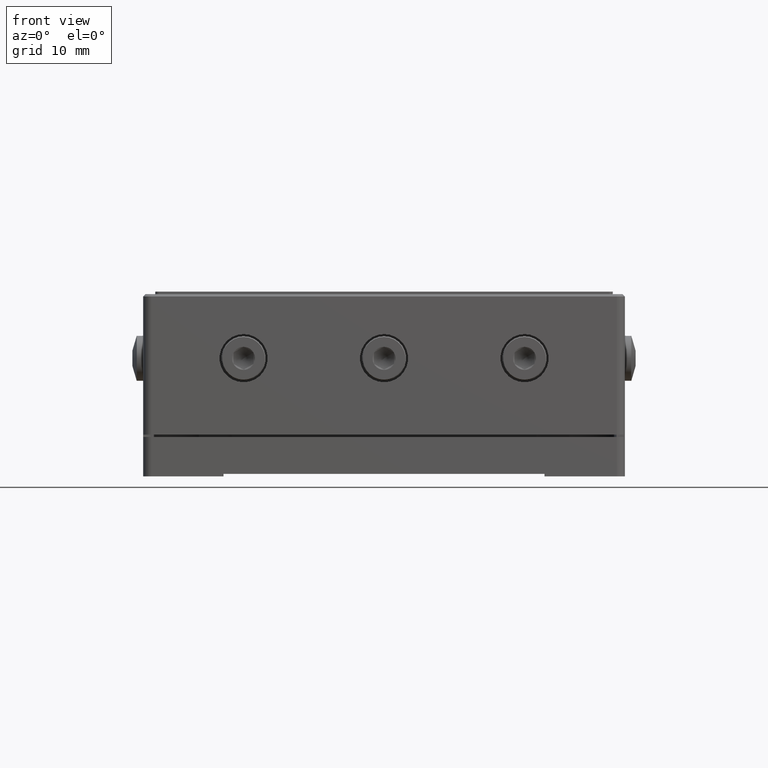
[diagram: clean part render]
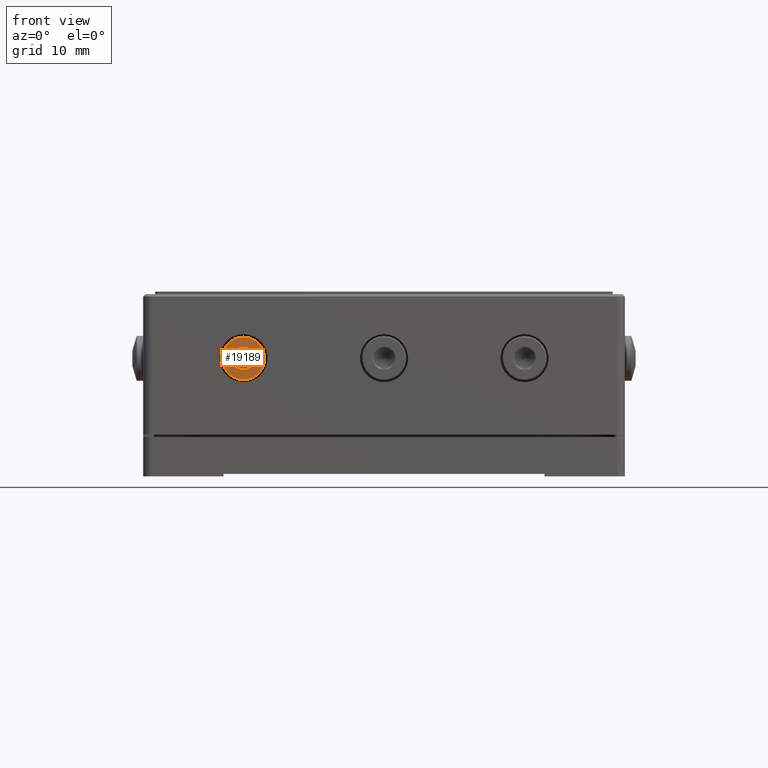
[diagram: same view with one face highlighted and labeled with its STEP entity id]
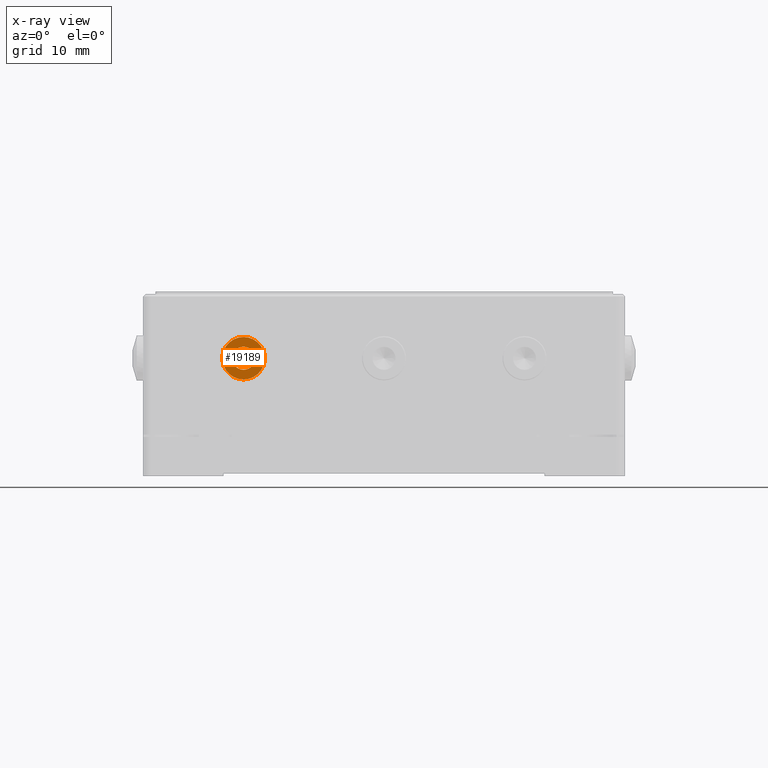
[diagram: x-ray of the same camera — body ghosted, the highlighted face saturated]
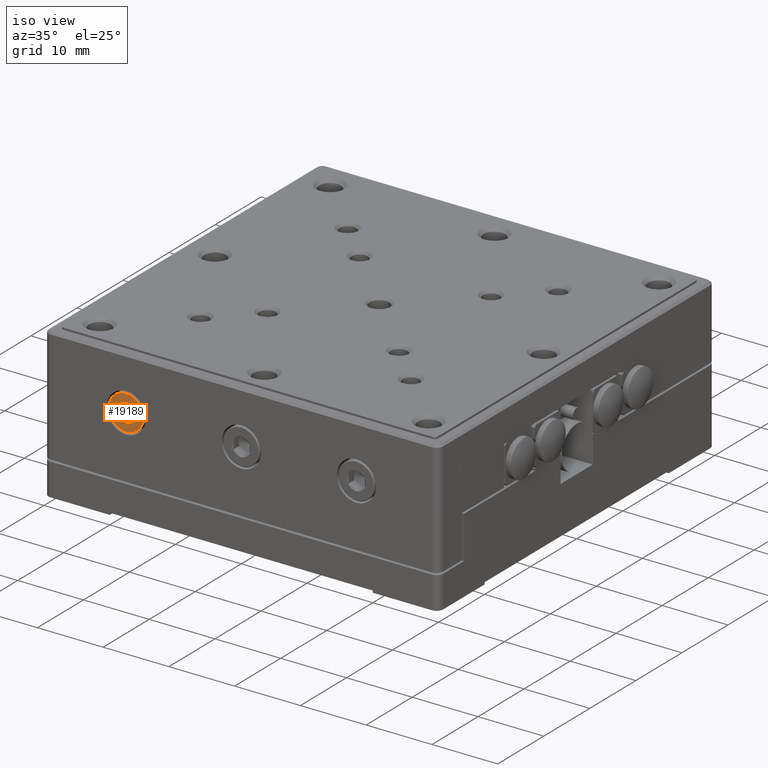
[diagram: same view with one face highlighted and labeled with its STEP entity id]
A machine part, front view. The second image highlights one B-rep face of the part: STEP entity #19189.
The next image is the same camera in x-ray: the body ghosted, the highlighted face saturated — about 0% of this face is hidden behind the body in this view.
A second angle (iso view) of the same face is appended — the face is thin or edge-on in the first view.
In plain terms, the highlighted planar face has unit normal (0, -1, 0).
Its self-contained STEP definition (entity closure, byte-faithful):
#1045 = CARTESIAN_POINT ( 'NONE',  ( -17.50000000000000000, -30.00000000005684342, 3.299999999999999822 ) ) ;
#2618 = CIRCLE ( 'NONE', #71481, 1.435000000014952093 ) ;
#3352 = DIRECTION ( 'NONE',  ( -0.000000000000000000, 1.000000000000000000, -0.000000000000000000 ) ) ;
#4076 = CARTESIAN_POINT ( 'NONE',  ( -17.50000000000000000, -30.00000000005684342, 3.299999999999999822 ) ) ;
#4917 = ORIENTED_EDGE ( 'NONE', *, *, #92298, .T. ) ;
#5654 = PLANE ( 'NONE',  #53920 ) ;
#6210 = VERTEX_POINT ( 'NONE', #26903 ) ;
#7148 = ORIENTED_EDGE ( 'NONE', *, *, #92464, .T. ) ;
#10735 = CARTESIAN_POINT ( 'NONE',  ( -17.50000000000000000, -30.00000000005684342, 3.299999999999999822 ) ) ;
#11212 = AXIS2_PLACEMENT_3D ( 'NONE', #39387, #37455, #83520 ) ;
#12737 = CIRCLE ( 'NONE', #11212, 2.650000000016916601 ) ;
#15490 = DIRECTION ( 'NONE',  ( -2.417733067538302533E-15, 0.000000000000000000, 1.000000000000000000 ) ) ;
#16258 = DIRECTION ( 'NONE',  ( -0.000000000000000000, 1.000000000000000000, -0.000000000000000000 ) ) ;
#17655 = CARTESIAN_POINT ( 'NONE',  ( -18.74274645443735210, -30.00000000005215384, 2.582499999997908358 ) ) ;
#18635 = EDGE_CURVE ( 'NONE', #87952, #24639, #93049, .T. ) ;
#19189 = ADVANCED_FACE ( 'NONE', ( #74250, #66422 ), #5654, .T. ) ;
#20072 = CARTESIAN_POINT ( 'NONE',  ( -17.50000000000000000, -30.00000000000000000, 0.6499999999830833319 ) ) ;
#21385 = ORIENTED_EDGE ( 'NONE', *, *, #66572, .T. ) ;
#22580 = AXIS2_PLACEMENT_3D ( 'NONE', #48926, #93557, #70988 ) ;
#24639 = VERTEX_POINT ( 'NONE', #82220 ) ;
#26903 = CARTESIAN_POINT ( 'NONE',  ( -17.50000000000130740, -30.00000000005209344, 4.735000000006722942 ) ) ;
#28878 = CARTESIAN_POINT ( 'NONE',  ( -16.25725354556401570, -30.00000000005215384, 4.017500000004454286 ) ) ;
#29767 = EDGE_LOOP ( 'NONE', ( #30460 ) ) ;
#30460 = ORIENTED_EDGE ( 'NONE', *, *, #89507, .F. ) ;
#31893 = CIRCLE ( 'NONE', #53813, 1.435000000014952093 ) ;
#32401 = DIRECTION ( 'NONE',  ( -2.417733067538302533E-15, 0.000000000000000000, 1.000000000000000000 ) ) ;
#33248 = DIRECTION ( 'NONE',  ( 2.417733067538302533E-15, 0.000000000000000000, 1.000000000000000000 ) ) ;
#33956 = DIRECTION ( 'NONE',  ( -0.000000000000000000, 1.000000000000000000, -0.000000000000000000 ) ) ;
#35566 = EDGE_LOOP ( 'NONE', ( #77488, #7148, #92446, #4917, #94911, #21385 ) ) ;
#36866 = AXIS2_PLACEMENT_3D ( 'NONE', #4076, #33956, #86419 ) ;
#37060 = DIRECTION ( 'NONE',  ( -0.000000000000000000, 1.000000000000000000, -0.000000000000000000 ) ) ;
#37455 = DIRECTION ( 'NONE',  ( 0.000000000000000000, 1.000000000000000000, 0.000000000000000000 ) ) ;
#39387 = CARTESIAN_POINT ( 'NONE',  ( -17.50000000000000000, -30.00000000000000000, 3.299999999999999822 ) ) ;
#40723 = CARTESIAN_POINT ( 'NONE',  ( -17.50000000000000000, -30.00000000005684342, 3.299999999999999822 ) ) ;
#43865 = DIRECTION ( 'NONE',  ( 0.000000000000000000, -1.000000000000000000, 0.000000000000000000 ) ) ;
#44433 = CIRCLE ( 'NONE', #69477, 1.435000000014952093 ) ;
#48926 = CARTESIAN_POINT ( 'NONE',  ( -17.50000000000000000, -30.00000000005684342, 3.299999999999999822 ) ) ;
#52550 = DIRECTION ( 'NONE',  ( 0.000000000000000000, 0.000000000000000000, 1.000000000000000000 ) ) ;
#52559 = CIRCLE ( 'NONE', #36866, 1.435000000014952093 ) ;
#53813 = AXIS2_PLACEMENT_3D ( 'NONE', #40723, #16258, #32401 ) ;
#53886 = AXIS2_PLACEMENT_3D ( 'NONE', #67429, #37060, #15490 ) ;
#53920 = AXIS2_PLACEMENT_3D ( 'NONE', #59070, #43865, #96330 ) ;
#59070 = CARTESIAN_POINT ( 'NONE',  ( -17.50000000000000000, -30.00000000000000000, 3.299999999999999822 ) ) ;
#66111 = VERTEX_POINT ( 'NONE', #20072 ) ;
#66422 = FACE_OUTER_BOUND ( 'NONE', #29767, .T. ) ;
#66572 = EDGE_CURVE ( 'NONE', #24639, #91257, #75753, .T. ) ;
#67429 = CARTESIAN_POINT ( 'NONE',  ( -17.50000000000000000, -30.00000000005684342, 3.299999999999999822 ) ) ;
#67714 = DIRECTION ( 'NONE',  ( -0.000000000000000000, 1.000000000000000000, -0.000000000000000000 ) ) ;
#68768 = EDGE_CURVE ( 'NONE', #95731, #6210, #52559, .T. ) ;
#69477 = AXIS2_PLACEMENT_3D ( 'NONE', #1045, #67714, #52550 ) ;
#70988 = DIRECTION ( 'NONE',  ( 2.417733067538302533E-15, 0.000000000000000000, 1.000000000000000000 ) ) ;
#71481 = AXIS2_PLACEMENT_3D ( 'NONE', #10735, #3352, #33248 ) ;
#71655 = CARTESIAN_POINT ( 'NONE',  ( -17.49999999999869615, -30.00000000005209344, 1.864999999993277147 ) ) ;
#74250 = FACE_BOUND ( 'NONE', #35566, .T. ) ;
#75753 = CIRCLE ( 'NONE', #53886, 1.435000000014952093 ) ;
#77488 = ORIENTED_EDGE ( 'NONE', *, *, #81345, .T. ) ;
#81345 = EDGE_CURVE ( 'NONE', #91257, #83836, #2618, .T. ) ;
#82191 = CARTESIAN_POINT ( 'NONE',  ( -18.74274645443099985, -30.00000000005215028, 4.017500000013082051 ) ) ;
#82220 = CARTESIAN_POINT ( 'NONE',  ( -16.25725354556405122, -30.00000000005211120, 2.582499999995635953 ) ) ;
#83520 = DIRECTION ( 'NONE',  ( 0.000000000000000000, 0.000000000000000000, -1.000000000000000000 ) ) ;
#83836 = VERTEX_POINT ( 'NONE', #17655 ) ;
#86419 = DIRECTION ( 'NONE',  ( 4.545338166972008847E-12, 0.000000000000000000, 1.000000000000000000 ) ) ;
#87952 = VERTEX_POINT ( 'NONE', #28878 ) ;
#89507 = EDGE_CURVE ( 'NONE', #66111, #66111, #12737, .T. ) ;
#91257 = VERTEX_POINT ( 'NONE', #71655 ) ;
#92298 = EDGE_CURVE ( 'NONE', #6210, #87952, #44433, .T. ) ;
#92446 = ORIENTED_EDGE ( 'NONE', *, *, #68768, .T. ) ;
#92464 = EDGE_CURVE ( 'NONE', #83836, #95731, #31893, .T. ) ;
#93049 = CIRCLE ( 'NONE', #22580, 1.435000000014952093 ) ;
#93557 = DIRECTION ( 'NONE',  ( -0.000000000000000000, 1.000000000000000000, -0.000000000000000000 ) ) ;
#94911 = ORIENTED_EDGE ( 'NONE', *, *, #18635, .T. ) ;
#95731 = VERTEX_POINT ( 'NONE', #82191 ) ;
#96330 = DIRECTION ( 'NONE',  ( 0.000000000000000000, 0.000000000000000000, 1.000000000000000000 ) ) ;